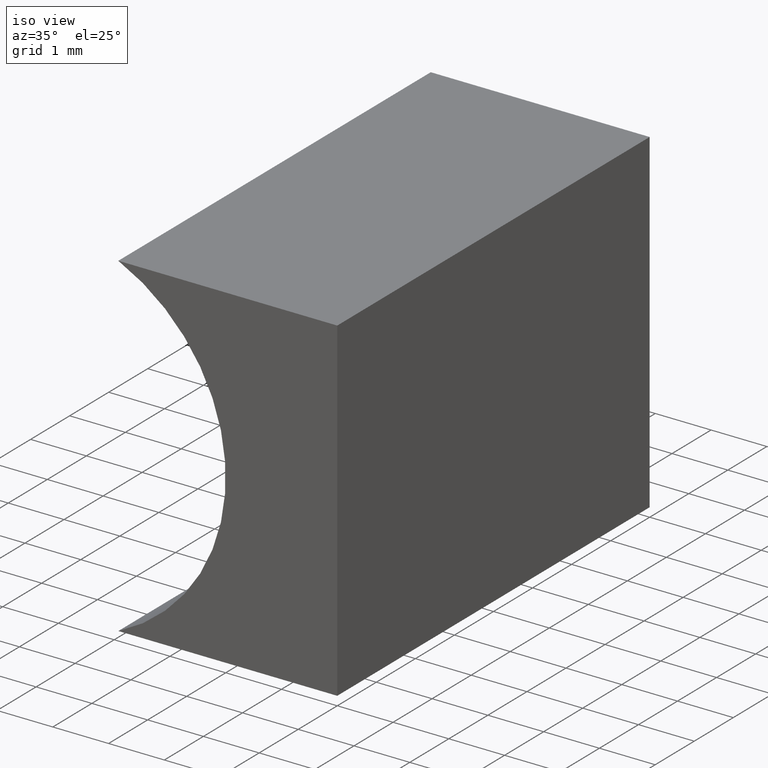
[diagram: clean part render]
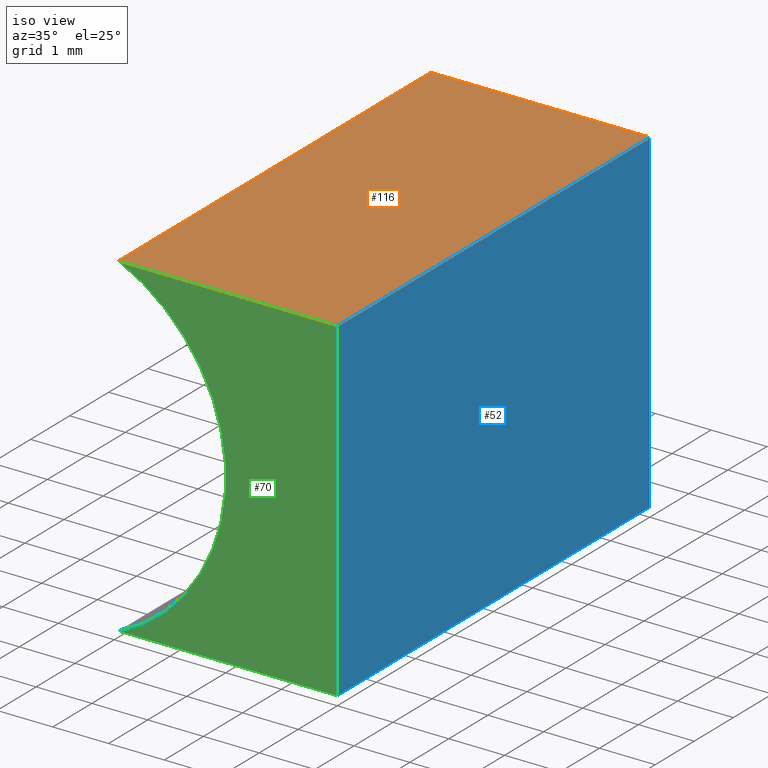
[diagram: same view with three faces highlighted in distinct colors, each labeled with its STEP entity id]
A machine part, iso view with three faces highlighted in distinct colors.
Their STEP definitions:

[orange] entity #116 — the highlighted planar face has unit normal (-0, 0, -1).
#1 = VERTEX_POINT ( 'NONE', #143 ) ;
#14 = VECTOR ( 'NONE', #165, 1000.000000000000000 ) ;
#17 = CARTESIAN_POINT ( 'NONE',  ( 3.673940397442059900E-016, 8.000000000000000000, 6.000000000000000000 ) ) ;
#36 = LINE ( 'NONE', #17, #72 ) ;
#48 = LINE ( 'NONE', #175, #14 ) ;
#56 = EDGE_CURVE ( 'NONE', #184, #115, #118, .T. ) ;
#67 = DIRECTION ( 'NONE',  ( -2.209710861492607300E-016, 0.0000000000000000000, -1.000000000000000000 ) ) ;
#68 = DIRECTION ( 'NONE',  ( 1.000000000000000000, -0.0000000000000000000, -2.209710861492607300E-016 ) ) ;
#72 = VECTOR ( 'NONE', #114, 1000.000000000000000 ) ;
#73 = ORIENTED_EDGE ( 'NONE', *, *, #152, .T. ) ;
#75 = VECTOR ( 'NONE', #68, 1000.000000000000000 ) ;
#89 = EDGE_CURVE ( 'NONE', #1, #150, #158, .T. ) ;
#90 = ORIENTED_EDGE ( 'NONE', *, *, #96, .F. ) ;
#93 = CARTESIAN_POINT ( 'NONE',  ( -3.925227291513249100, 0.0000000000000000000, 6.000000000000000900 ) ) ;
#94 = EDGE_LOOP ( 'NONE', ( #106, #90, #147, #73 ) ) ;
#95 = CARTESIAN_POINT ( 'NONE',  ( 3.673940397442059900E-016, 8.000000000000000000, 6.000000000000000000 ) ) ;
#96 = EDGE_CURVE ( 'NONE', #150, #115, #36, .T. ) ;
#105 = FACE_OUTER_BOUND ( 'NONE', #94, .T. ) ;
#106 = ORIENTED_EDGE ( 'NONE', *, *, #56, .T. ) ;
#114 = DIRECTION ( 'NONE',  ( -0.0000000000000000000, -1.000000000000000000, -0.0000000000000000000 ) ) ;
#115 = VERTEX_POINT ( 'NONE', #155 ) ;
#116 = ADVANCED_FACE ( 'NONE', ( #105 ), #191, .F. ) ;
#118 = LINE ( 'NONE', #180, #75 ) ;
#120 = CARTESIAN_POINT ( 'NONE',  ( 3.673940397442059900E-016, 8.000000000000000000, 6.000000000000000000 ) ) ;
#121 = DIRECTION ( 'NONE',  ( -1.000000000000000000, 0.0000000000000000000, 2.209710861492607300E-016 ) ) ;
#124 = DIRECTION ( 'NONE',  ( 1.000000000000000000, -0.0000000000000000000, -2.209710861492607300E-016 ) ) ;
#127 = CARTESIAN_POINT ( 'NONE',  ( 3.673940397442059900E-016, 8.000000000000000000, 6.000000000000000000 ) ) ;
#140 = AXIS2_PLACEMENT_3D ( 'NONE', #120, #67, #121 ) ;
#143 = CARTESIAN_POINT ( 'NONE',  ( -3.925227291513249100, 8.000000000000000000, 6.000000000000000900 ) ) ;
#147 = ORIENTED_EDGE ( 'NONE', *, *, #89, .F. ) ;
#150 = VERTEX_POINT ( 'NONE', #95 ) ;
#152 = EDGE_CURVE ( 'NONE', #1, #184, #48, .T. ) ;
#155 = CARTESIAN_POINT ( 'NONE',  ( 3.673940397442059900E-016, 0.0000000000000000000, 6.000000000000000000 ) ) ;
#158 = LINE ( 'NONE', #127, #199 ) ;
#165 = DIRECTION ( 'NONE',  ( -0.0000000000000000000, -1.000000000000000000, -0.0000000000000000000 ) ) ;
#175 = CARTESIAN_POINT ( 'NONE',  ( -3.925227291513249100, 8.000000000000000000, 6.000000000000000900 ) ) ;
#180 = CARTESIAN_POINT ( 'NONE',  ( 3.673940397442059900E-016, 0.0000000000000000000, 6.000000000000000000 ) ) ;
#184 = VERTEX_POINT ( 'NONE', #93 ) ;
#191 = PLANE ( 'NONE',  #140 ) ;
#199 = VECTOR ( 'NONE', #124, 1000.000000000000000 ) ;

[blue] entity #52 — the highlighted planar face has unit normal (-1, 0, 0).
#3 = ORIENTED_EDGE ( 'NONE', *, *, #96, .T. ) ;
#4 = DIRECTION ( 'NONE',  ( -6.123233995736766000E-017, -0.0000000000000000000, -1.000000000000000000 ) ) ;
#16 = ORIENTED_EDGE ( 'NONE', *, *, #146, .T. ) ;
#17 = CARTESIAN_POINT ( 'NONE',  ( 3.673940397442059900E-016, 8.000000000000000000, 6.000000000000000000 ) ) ;
#24 = VECTOR ( 'NONE', #179, 1000.000000000000000 ) ;
#33 = LINE ( 'NONE', #45, #154 ) ;
#36 = LINE ( 'NONE', #17, #72 ) ;
#45 = CARTESIAN_POINT ( 'NONE',  ( 0.0000000000000000000, 8.000000000000000000, 0.0000000000000000000 ) ) ;
#46 = FACE_OUTER_BOUND ( 'NONE', #53, .T. ) ;
#51 = VERTEX_POINT ( 'NONE', #55 ) ;
#52 = ADVANCED_FACE ( 'NONE', ( #46 ), #65, .F. ) ;
#53 = EDGE_LOOP ( 'NONE', ( #16, #59, #92, #3 ) ) ;
#55 = CARTESIAN_POINT ( 'NONE',  ( 0.0000000000000000000, 8.000000000000000000, 0.0000000000000000000 ) ) ;
#59 = ORIENTED_EDGE ( 'NONE', *, *, #104, .F. ) ;
#64 = VECTOR ( 'NONE', #4, 1000.000000000000000 ) ;
#65 = PLANE ( 'NONE',  #190 ) ;
#72 = VECTOR ( 'NONE', #114, 1000.000000000000000 ) ;
#86 = DIRECTION ( 'NONE',  ( -1.000000000000000000, 0.0000000000000000000, 6.123233995736766000E-017 ) ) ;
#92 = ORIENTED_EDGE ( 'NONE', *, *, #103, .F. ) ;
#95 = CARTESIAN_POINT ( 'NONE',  ( 3.673940397442059900E-016, 8.000000000000000000, 6.000000000000000000 ) ) ;
#96 = EDGE_CURVE ( 'NONE', #150, #115, #36, .T. ) ;
#97 = CARTESIAN_POINT ( 'NONE',  ( 0.0000000000000000000, 0.0000000000000000000, 0.0000000000000000000 ) ) ;
#103 = EDGE_CURVE ( 'NONE', #150, #51, #204, .T. ) ;
#104 = EDGE_CURVE ( 'NONE', #51, #133, #33, .T. ) ;
#107 = DIRECTION ( 'NONE',  ( 6.123233995736766000E-017, 0.0000000000000000000, 1.000000000000000000 ) ) ;
#109 = CARTESIAN_POINT ( 'NONE',  ( 0.0000000000000000000, 8.000000000000000000, 0.0000000000000000000 ) ) ;
#114 = DIRECTION ( 'NONE',  ( -0.0000000000000000000, -1.000000000000000000, -0.0000000000000000000 ) ) ;
#115 = VERTEX_POINT ( 'NONE', #155 ) ;
#133 = VERTEX_POINT ( 'NONE', #197 ) ;
#146 = EDGE_CURVE ( 'NONE', #115, #133, #189, .T. ) ;
#150 = VERTEX_POINT ( 'NONE', #95 ) ;
#151 = CARTESIAN_POINT ( 'NONE',  ( 0.0000000000000000000, 8.000000000000000000, 0.0000000000000000000 ) ) ;
#154 = VECTOR ( 'NONE', #178, 1000.000000000000000 ) ;
#155 = CARTESIAN_POINT ( 'NONE',  ( 3.673940397442059900E-016, 0.0000000000000000000, 6.000000000000000000 ) ) ;
#178 = DIRECTION ( 'NONE',  ( -0.0000000000000000000, -1.000000000000000000, -0.0000000000000000000 ) ) ;
#179 = DIRECTION ( 'NONE',  ( -6.123233995736766000E-017, -0.0000000000000000000, -1.000000000000000000 ) ) ;
#189 = LINE ( 'NONE', #97, #64 ) ;
#190 = AXIS2_PLACEMENT_3D ( 'NONE', #151, #86, #107 ) ;
#197 = CARTESIAN_POINT ( 'NONE',  ( 0.0000000000000000000, 0.0000000000000000000, 0.0000000000000000000 ) ) ;
#204 = LINE ( 'NONE', #109, #24 ) ;

[green] entity #70 — the highlighted planar face has unit normal (0, 1, 0).
#4 = DIRECTION ( 'NONE',  ( -6.123233995736766000E-017, -0.0000000000000000000, -1.000000000000000000 ) ) ;
#11 = AXIS2_PLACEMENT_3D ( 'NONE', #91, #50, #159 ) ;
#20 = ORIENTED_EDGE ( 'NONE', *, *, #56, .F. ) ;
#39 = PLANE ( 'NONE',  #157 ) ;
#50 = DIRECTION ( 'NONE',  ( -0.0000000000000000000, -1.000000000000000000, -0.0000000000000000000 ) ) ;
#54 = VERTEX_POINT ( 'NONE', #129 ) ;
#56 = EDGE_CURVE ( 'NONE', #184, #115, #118, .T. ) ;
#64 = VECTOR ( 'NONE', #4, 1000.000000000000000 ) ;
#68 = DIRECTION ( 'NONE',  ( 1.000000000000000000, -0.0000000000000000000, -2.209710861492607300E-016 ) ) ;
#70 = ADVANCED_FACE ( 'NONE', ( #192 ), #39, .F. ) ;
#75 = VECTOR ( 'NONE', #68, 1000.000000000000000 ) ;
#83 = CARTESIAN_POINT ( 'NONE',  ( 0.0000000000000000000, 0.0000000000000000000, 0.0000000000000000000 ) ) ;
#84 = ORIENTED_EDGE ( 'NONE', *, *, #146, .F. ) ;
#91 = CARTESIAN_POINT ( 'NONE',  ( -5.300000000000000700, 0.0000000000000000000, 3.000000000000000900 ) ) ;
#93 = CARTESIAN_POINT ( 'NONE',  ( -3.925227291513249100, 0.0000000000000000000, 6.000000000000000900 ) ) ;
#97 = CARTESIAN_POINT ( 'NONE',  ( 0.0000000000000000000, 0.0000000000000000000, 0.0000000000000000000 ) ) ;
#99 = DIRECTION ( 'NONE',  ( 0.0000000000000000000, 1.000000000000000000, 0.0000000000000000000 ) ) ;
#110 = EDGE_CURVE ( 'NONE', #133, #54, #164, .T. ) ;
#115 = VERTEX_POINT ( 'NONE', #155 ) ;
#118 = LINE ( 'NONE', #180, #75 ) ;
#126 = EDGE_CURVE ( 'NONE', #54, #184, #183, .T. ) ;
#129 = CARTESIAN_POINT ( 'NONE',  ( -3.925227291513248200, 0.0000000000000000000, 8.673617379884035500E-016 ) ) ;
#133 = VERTEX_POINT ( 'NONE', #197 ) ;
#134 = EDGE_LOOP ( 'NONE', ( #162, #84, #20, #193 ) ) ;
#146 = EDGE_CURVE ( 'NONE', #115, #133, #189, .T. ) ;
#153 = DIRECTION ( 'NONE',  ( 0.0000000000000000000, -0.0000000000000000000, 1.000000000000000000 ) ) ;
#155 = CARTESIAN_POINT ( 'NONE',  ( 3.673940397442059900E-016, 0.0000000000000000000, 6.000000000000000000 ) ) ;
#157 = AXIS2_PLACEMENT_3D ( 'NONE', #198, #99, #153 ) ;
#159 = DIRECTION ( 'NONE',  ( 0.0000000000000000000, 0.0000000000000000000, 1.000000000000000000 ) ) ;
#162 = ORIENTED_EDGE ( 'NONE', *, *, #110, .F. ) ;
#163 = DIRECTION ( 'NONE',  ( -1.000000000000000000, 0.0000000000000000000, 1.559969281008474800E-016 ) ) ;
#164 = LINE ( 'NONE', #83, #195 ) ;
#180 = CARTESIAN_POINT ( 'NONE',  ( 3.673940397442059900E-016, 0.0000000000000000000, 6.000000000000000000 ) ) ;
#183 = CIRCLE ( 'NONE', #11, 3.299999999999999800 ) ;
#184 = VERTEX_POINT ( 'NONE', #93 ) ;
#189 = LINE ( 'NONE', #97, #64 ) ;
#192 = FACE_OUTER_BOUND ( 'NONE', #134, .T. ) ;
#193 = ORIENTED_EDGE ( 'NONE', *, *, #126, .F. ) ;
#195 = VECTOR ( 'NONE', #163, 1000.000000000000000 ) ;
#197 = CARTESIAN_POINT ( 'NONE',  ( 0.0000000000000000000, 0.0000000000000000000, 0.0000000000000000000 ) ) ;
#198 = CARTESIAN_POINT ( 'NONE',  ( -5.300000000000000700, 0.0000000000000000000, 3.000000000000000900 ) ) ;